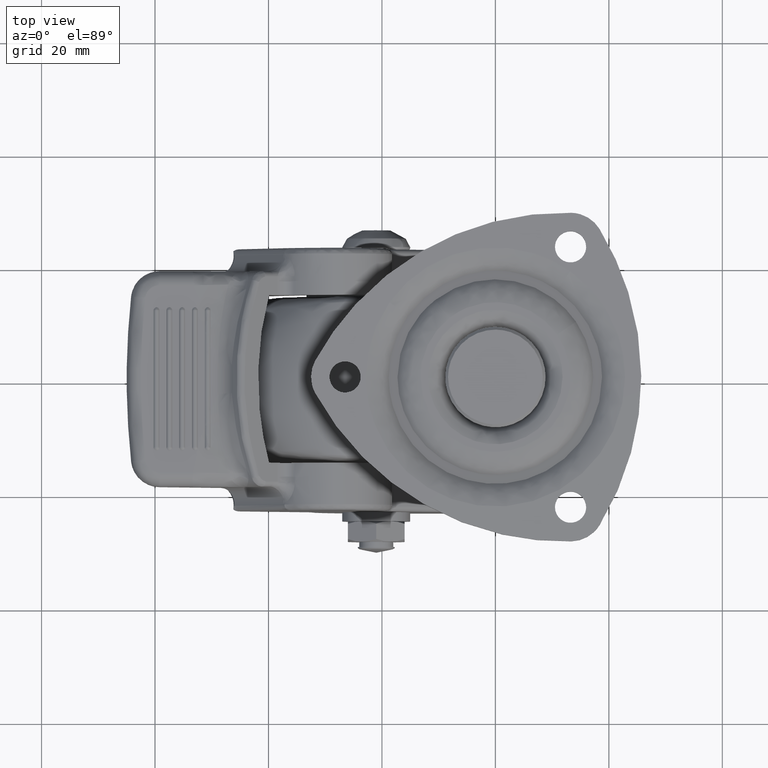
[diagram: clean part render]
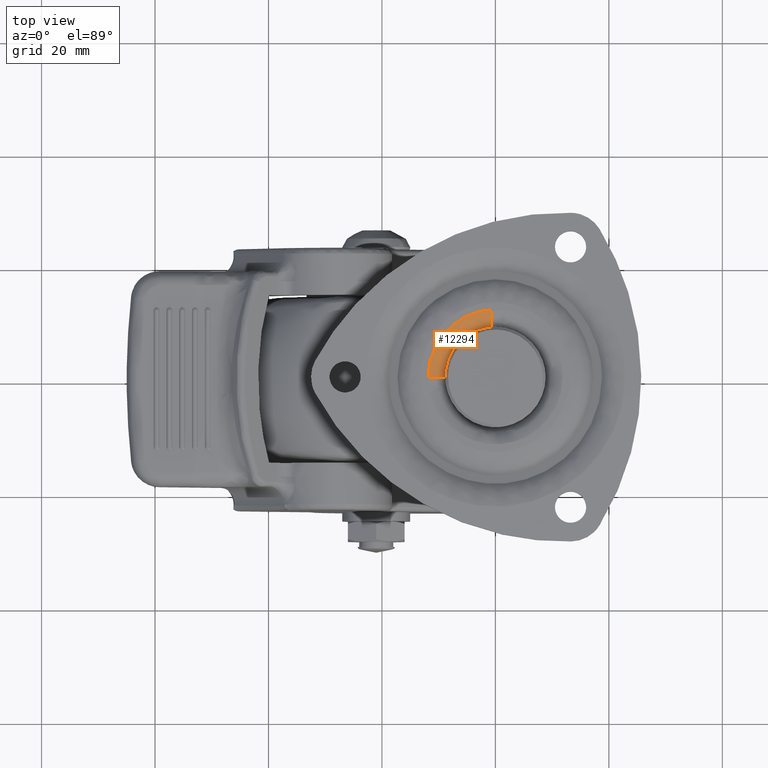
[diagram: same view with one face highlighted and labeled with its STEP entity id]
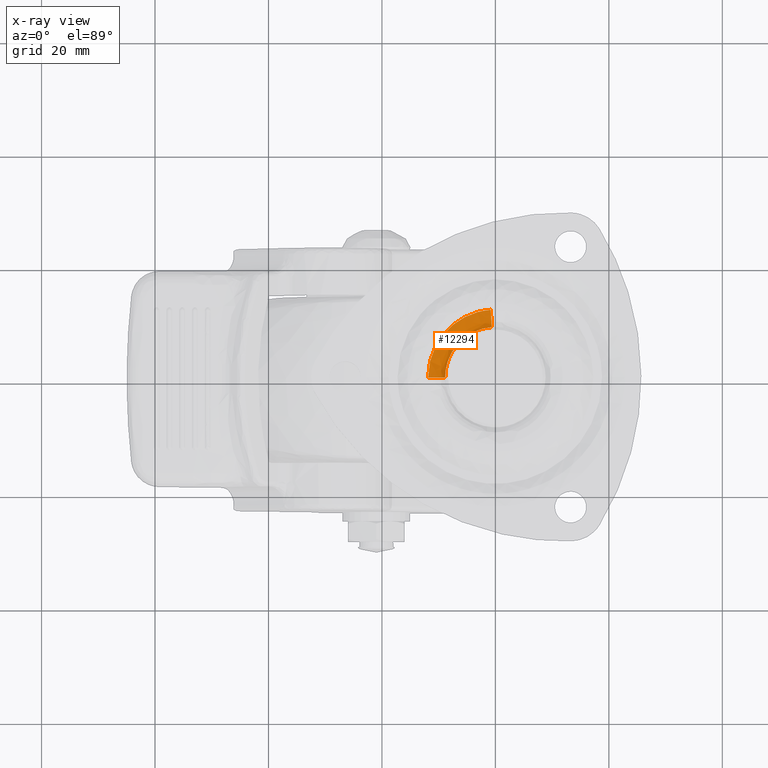
[diagram: x-ray of the same camera — body ghosted, the highlighted face saturated]
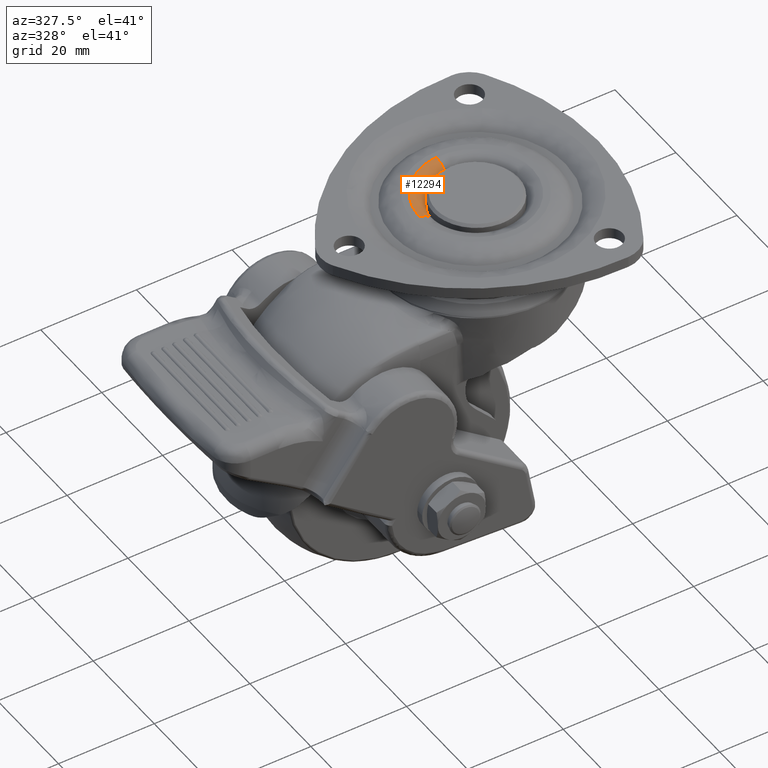
[diagram: same view with one face highlighted and labeled with its STEP entity id]
A machine part, top view. The second image highlights one B-rep face of the part: STEP entity #12294.
The next image is the same camera in x-ray: the body ghosted, the highlighted face saturated — about 0% of this face is hidden behind the body in this view.
A second angle (auxiliary view) of the same face is appended — the face is thin or edge-on in the first view.
In plain terms, the highlighted face is a freeform B-spline surface patch.
Its self-contained STEP definition (entity closure, byte-faithful):
#11207=CARTESIAN_POINT('',(-0.617139276590766,8.828456213477473,-2.999999999653067));
#11208=VERTEX_POINT('',#11207);
#11224=CARTESIAN_POINT('',(-8.850000000000000,0.0,-3.0));
#11225=VERTEX_POINT('',#11224);
#11226=CARTESIAN_POINT('',(-0.617139276590766,8.828456213477473,-2.999999999653067));
#11227=CARTESIAN_POINT('',(-8.849999999999998,8.252951098032010,-3.0));
#11228=CARTESIAN_POINT('',(-8.850000000000000,0.0,-3.0));
#11236=(BOUNDED_CURVE()B_SPLINE_CURVE(2,(#11226,#11227,#11228),.UNSPECIFIED.,.F.,.U.)B_SPLINE_CURVE_WITH_KNOTS((3,3),(0.762166313470636,1.0),.UNSPECIFIED.)CURVE()GEOMETRIC_REPRESENTATION_ITEM()RATIONAL_B_SPLINE_CURVE((0.972879876374862,0.721360504040579,1.0))REPRESENTATION_ITEM(''));
#11237=EDGE_CURVE('',#11208,#11225,#11236,.T.);
#11239=CARTESIAN_POINT('',(-8.849301241203392,-0.111209452997764,-2.999999999644059));
#11240=VERTEX_POINT('',#11239);
#11241=CARTESIAN_POINT('',(-8.850000000000000,0.0,-3.0));
#11242=CARTESIAN_POINT('',(-8.850000000000001,-0.055606921758321,-3.000000000000000));
#11243=CARTESIAN_POINT('',(-8.849301241203392,-0.111209452997764,-2.999999999644059));
#11251=(BOUNDED_CURVE()B_SPLINE_CURVE(2,(#11241,#11242,#11243),.UNSPECIFIED.,.F.,.U.)B_SPLINE_CURVE_WITH_KNOTS((3,3),(0.0,0.002215704079468),.UNSPECIFIED.)CURVE()GEOMETRIC_REPRESENTATION_ITEM()RATIONAL_B_SPLINE_CURVE((1.0,0.997404141200906,0.994854295641259))REPRESENTATION_ITEM(''));
#11252=EDGE_CURVE('',#11225,#11240,#11251,.T.);
#12178=CARTESIAN_POINT('',(-11.849064373699790,-0.148907572722384,-4.398953E-016));
#12179=VERTEX_POINT('',#12178);
#12180=CARTESIAN_POINT('',(-8.849301241203392,-0.111209452997764,-2.999999999644059));
#12181=CARTESIAN_POINT('',(-8.849301241915596,-0.111209452976617,-2.282151E-010));
#12182=CARTESIAN_POINT('',(-11.849064373699791,-0.148907572722384,-4.398953E-016));
#12190=(BOUNDED_CURVE()B_SPLINE_CURVE(2,(#12180,#12181,#12182),.UNSPECIFIED.,.F.,.U.)B_SPLINE_CURVE_WITH_KNOTS((3,3),(-1.725134643038470,-0.274865356796197),.UNSPECIFIED.)CURVE()GEOMETRIC_REPRESENTATION_ITEM()RATIONAL_B_SPLINE_CURVE((0.883342149566235,0.624617224184910,0.883342149625226))REPRESENTATION_ITEM(''));
#12191=EDGE_CURVE('',#11240,#12179,#12190,.T.);
#12210=CARTESIAN_POINT('',(-0.826339031500371,11.821153233718951,-5.785947E-016));
#12211=VERTEX_POINT('',#12210);
#12227=CARTESIAN_POINT('',(-0.617139276590766,8.828456213477473,-2.999999999653067));
#12228=CARTESIAN_POINT('',(-0.617139276491049,8.828456214180003,-2.527842E-009));
#12229=CARTESIAN_POINT('',(-0.826339031500371,11.821153233718954,-5.785947E-016));
#12237=(BOUNDED_CURVE()B_SPLINE_CURVE(2,(#12227,#12228,#12229),.UNSPECIFIED.,.F.,.U.)B_SPLINE_CURVE_WITH_KNOTS((3,3),(-1.725134643044629,-0.274865357582282),.UNSPECIFIED.)CURVE()GEOMETRIC_REPRESENTATION_ITEM()RATIONAL_B_SPLINE_CURVE((0.863472075289979,0.610566960053307,0.863472075071332))REPRESENTATION_ITEM(''));
#12238=EDGE_CURVE('',#11208,#12211,#12237,.T.);
#12243=CARTESIAN_POINT('',(-8.856562572826137,-0.111300706355428,-3.208611348413853));
#12244=CARTESIAN_POINT('',(-8.961669777736272,8.252424624989406,-3.208611348413852));
#12245=CARTESIAN_POINT('',(-0.617645672690378,8.835700440634396,-3.208611348413854));
#12246=CARTESIAN_POINT('',(-8.616708115999014,-0.108286447691546,0.232612038094932));
#12247=CARTESIAN_POINT('',(-8.718968795371161,8.028931502273061,0.232612038094932));
#12248=CARTESIAN_POINT('',(-0.600918520805365,8.596410974495694,0.232612038094932));
#12249=CARTESIAN_POINT('',(-12.057659757398962,-0.151528997504015,-0.007261940282927));
#12250=CARTESIAN_POINT('',(-12.200756687436597,11.235163471548855,-0.007261940282927));
#12251=CARTESIAN_POINT('',(-0.840886214114323,12.029257260412859,-0.007261940282927));
#12259=(BOUNDED_SURFACE()B_SPLINE_SURFACE(2,2,((#12243,#12246,#12249),(#12244,#12247,#12250),(#12245,#12248,#12251)),.UNSPECIFIED.,.F.,.F.,.U.)B_SPLINE_SURFACE_WITH_KNOTS((3,3),(3,3),(0.0,19.174923967718790),(0.0,5.467122398720991),.UNSPECIFIED.)GEOMETRIC_REPRESENTATION_ITEM()RATIONAL_B_SPLINE_SURFACE(((0.910479798011975,0.597479540681832,0.910479868185649),(0.654473373655800,0.429481743070166,0.654473424098216),(0.889999284063481,0.584039716872898,0.889999352658654)))REPRESENTATION_ITEM('')SURFACE());
#12260=ORIENTED_EDGE('',*,*,#11237,.F.);
#12261=ORIENTED_EDGE('',*,*,#12238,.T.);
#12262=CARTESIAN_POINT('',(-11.850000000000000,0.0,0.0));
#12263=VERTEX_POINT('',#12262);
#12264=CARTESIAN_POINT('',(-11.850000000000000,0.0,0.0));
#12265=CARTESIAN_POINT('',(-11.850000000000001,11.050561639323183,0.0));
#12266=CARTESIAN_POINT('',(-0.826339031500371,11.821153233718952,-5.785947E-016));
#12274=(BOUNDED_CURVE()B_SPLINE_CURVE(2,(#12264,#12265,#12266),.UNSPECIFIED.,.F.,.U.)B_SPLINE_CURVE_WITH_KNOTS((3,3),(0.0,0.237833686522928),.UNSPECIFIED.)CURVE()GEOMETRIC_REPRESENTATION_ITEM()RATIONAL_B_SPLINE_CURVE((1.0,0.721360504048120,0.972879876361248))REPRESENTATION_ITEM(''));
#12275=EDGE_CURVE('',#12263,#12211,#12274,.T.);
#12276=ORIENTED_EDGE('',*,*,#12275,.F.);
#12277=CARTESIAN_POINT('',(-11.849064373699791,-0.148907572722384,-4.398953E-016));
#12278=CARTESIAN_POINT('',(-11.849999999999998,-0.074456725809995,0.0));
#12279=CARTESIAN_POINT('',(-11.850000000000000,0.0,0.0));
#12287=(BOUNDED_CURVE()B_SPLINE_CURVE(2,(#12277,#12278,#12279),.UNSPECIFIED.,.F.,.U.)B_SPLINE_CURVE_WITH_KNOTS((3,3),(0.997784295918579,1.0),.UNSPECIFIED.)CURVE()GEOMETRIC_REPRESENTATION_ITEM()RATIONAL_B_SPLINE_CURVE((0.994854295636764,0.997404141198618,1.0))REPRESENTATION_ITEM(''));
#12288=EDGE_CURVE('',#12179,#12263,#12287,.T.);
#12289=ORIENTED_EDGE('',*,*,#12288,.F.);
#12290=ORIENTED_EDGE('',*,*,#12191,.F.);
#12291=ORIENTED_EDGE('',*,*,#11252,.F.);
#12292=EDGE_LOOP('',(#12260,#12261,#12276,#12289,#12290,#12291));
#12293=FACE_OUTER_BOUND('',#12292,.T.);
#12294=ADVANCED_FACE('',(#12293),#12259,.T.);